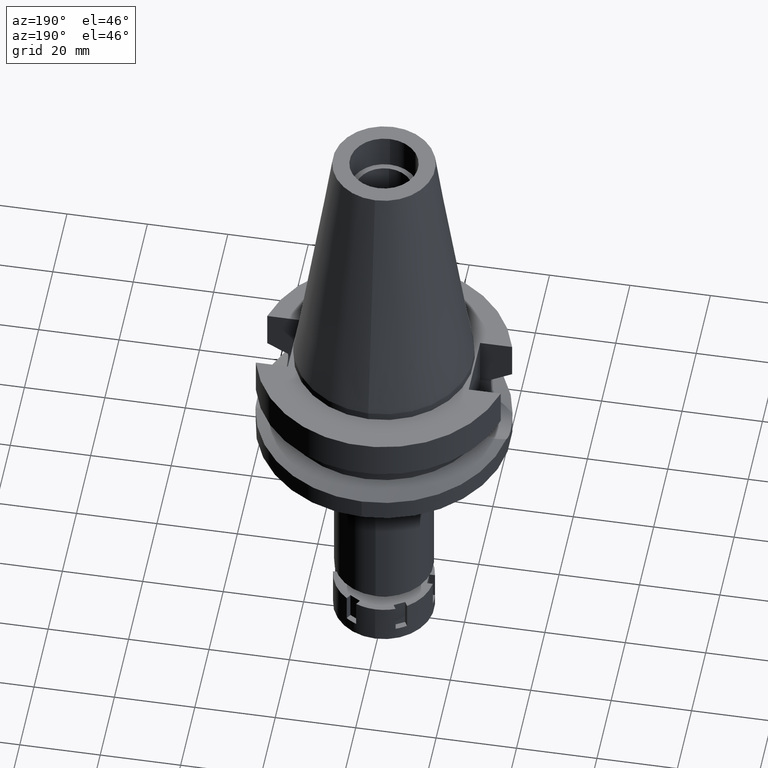
[diagram: clean part render]
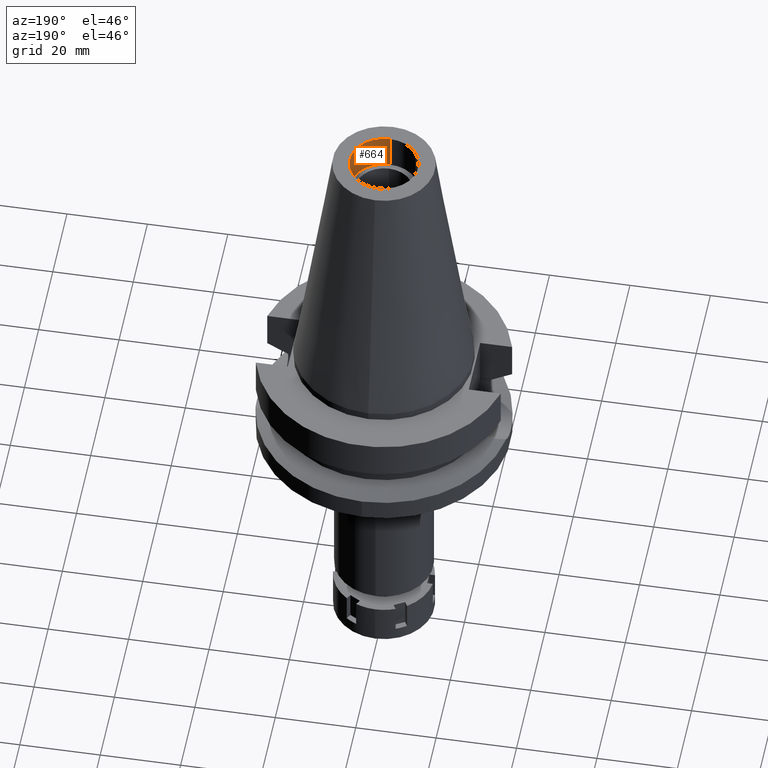
[diagram: same view with one face highlighted and labeled with its STEP entity id]
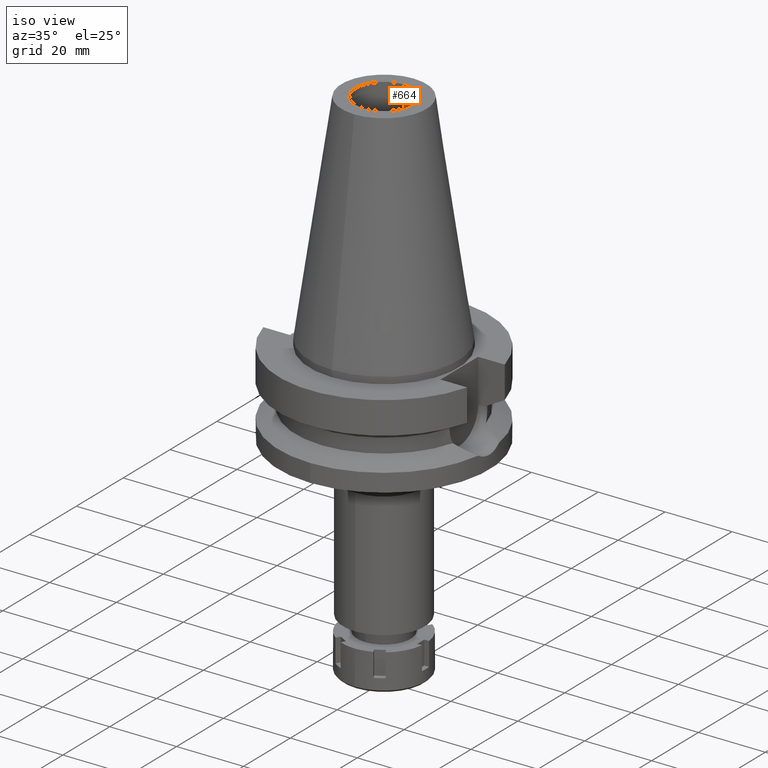
[diagram: same view with one face highlighted and labeled with its STEP entity id]
A machine part, auxiliary view. The second image highlights one B-rep face of the part: STEP entity #664.
A second angle (iso view) of the same face is appended — the face is thin or edge-on in the first view.
In plain terms, the highlighted cylindrical surface (edge-blend (fillet) strip) has radius 8.5 mm, axis along (0, 0, -1).
Its self-contained STEP definition (entity closure, byte-faithful):
#187 = FACE_OUTER_BOUND ( 'NONE', #1374, .T. ) ;
#192 = CIRCLE ( 'NONE', #2917, 8.500000000000000000 ) ;
#248 = ORIENTED_EDGE ( 'NONE', *, *, #2342, .T. ) ;
#405 = VERTEX_POINT ( 'NONE', #3386 ) ;
#418 = ORIENTED_EDGE ( 'NONE', *, *, #1806, .T. ) ;
#425 = LINE ( 'NONE', #3270, #1078 ) ;
#433 = VECTOR ( 'NONE', #2797, 1000.000000000000000 ) ;
#574 = CARTESIAN_POINT ( 'NONE',  ( 0.0000000000000000000, -8.500000000000000000, 56.39999999999999858 ) ) ;
#613 = DIRECTION ( 'NONE',  ( 0.0000000000000000000, 1.000000000000000000, 0.0000000000000000000 ) ) ;
#664 = ADVANCED_FACE ( 'NONE', ( #187 ), #1295, .F. ) ;
#713 = CARTESIAN_POINT ( 'NONE',  ( 0.0000000000000000000, 8.500000000000000000, 56.39999999999999858 ) ) ;
#742 = CIRCLE ( 'NONE', #3616, 8.500000000000000000 ) ;
#985 = CARTESIAN_POINT ( 'NONE',  ( 0.0000000000000000000, 8.500000000000000000, 65.40000000000000568 ) ) ;
#1043 = CARTESIAN_POINT ( 'NONE',  ( 0.0000000000000000000, 2.117046921685999950E-14, 72.87000000000000455 ) ) ;
#1074 = DIRECTION ( 'NONE',  ( 0.0000000000000000000, 0.0000000000000000000, 1.000000000000000000 ) ) ;
#1078 = VECTOR ( 'NONE', #3530, 1000.000000000000000 ) ;
#1295 = CYLINDRICAL_SURFACE ( 'NONE', #1920, 8.500000000000000000 ) ;
#1374 = EDGE_LOOP ( 'NONE', ( #2988, #418, #248, #2525 ) ) ;
#1531 = VERTEX_POINT ( 'NONE', #3445 ) ;
#1636 = EDGE_CURVE ( 'NONE', #2080, #2566, #425, .T. ) ;
#1760 = DIRECTION ( 'NONE',  ( 0.0000000000000000000, 0.0000000000000000000, -1.000000000000000000 ) ) ;
#1806 = EDGE_CURVE ( 'NONE', #405, #1531, #2759, .T. ) ;
#1920 = AXIS2_PLACEMENT_3D ( 'NONE', #1043, #2999, #3295 ) ;
#2080 = VERTEX_POINT ( 'NONE', #713 ) ;
#2342 = EDGE_CURVE ( 'NONE', #1531, #2566, #742, .T. ) ;
#2525 = ORIENTED_EDGE ( 'NONE', *, *, #1636, .F. ) ;
#2566 = VERTEX_POINT ( 'NONE', #985 ) ;
#2759 = LINE ( 'NONE', #574, #433 ) ;
#2797 = DIRECTION ( 'NONE',  ( 0.0000000000000000000, 0.0000000000000000000, 1.000000000000000000 ) ) ;
#2813 = CARTESIAN_POINT ( 'NONE',  ( 0.0000000000000000000, 2.117046921685999950E-14, 56.39999999999999858 ) ) ;
#2917 = AXIS2_PLACEMENT_3D ( 'NONE', #2813, #1760, #613 ) ;
#2988 = ORIENTED_EDGE ( 'NONE', *, *, #3311, .T. ) ;
#2999 = DIRECTION ( 'NONE',  ( 0.0000000000000000000, 0.0000000000000000000, -1.000000000000000000 ) ) ;
#3270 = CARTESIAN_POINT ( 'NONE',  ( 0.0000000000000000000, 8.500000000000000000, 56.39999999999999858 ) ) ;
#3295 = DIRECTION ( 'NONE',  ( 0.0000000000000000000, -1.000000000000000000, 0.0000000000000000000 ) ) ;
#3311 = EDGE_CURVE ( 'NONE', #2080, #405, #192, .T. ) ;
#3327 = DIRECTION ( 'NONE',  ( 0.0000000000000000000, -1.000000000000000000, 0.0000000000000000000 ) ) ;
#3386 = CARTESIAN_POINT ( 'NONE',  ( 0.0000000000000000000, -8.500000000000000000, 56.39999999999999858 ) ) ;
#3445 = CARTESIAN_POINT ( 'NONE',  ( 0.0000000000000000000, -8.500000000000000000, 65.40000000000000568 ) ) ;
#3530 = DIRECTION ( 'NONE',  ( 0.0000000000000000000, 0.0000000000000000000, 1.000000000000000000 ) ) ;
#3593 = CARTESIAN_POINT ( 'NONE',  ( 0.0000000000000000000, 2.117046921685999950E-14, 65.40000000000000568 ) ) ;
#3616 = AXIS2_PLACEMENT_3D ( 'NONE', #3593, #1074, #3327 ) ;